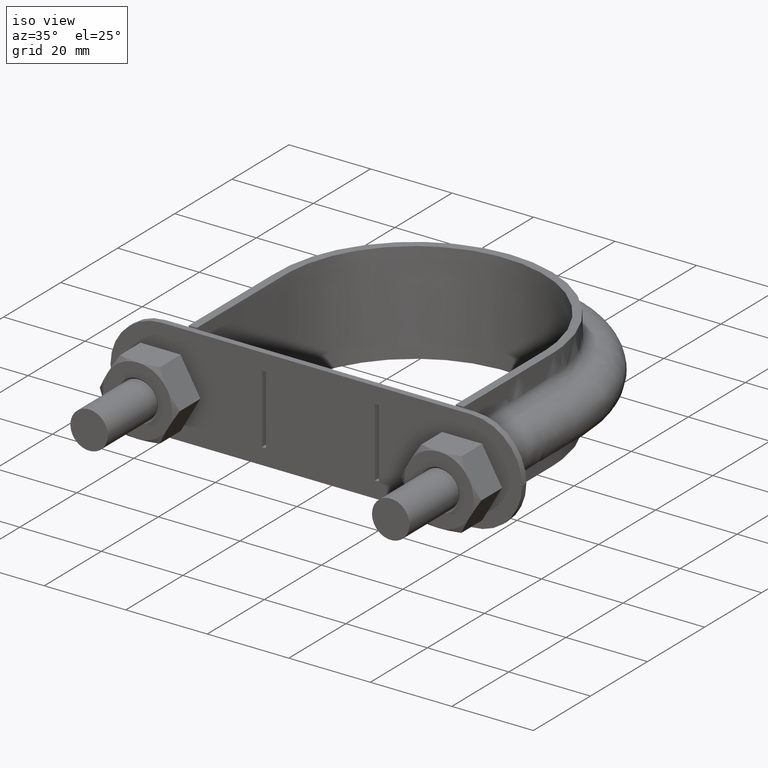
[diagram: clean part render]
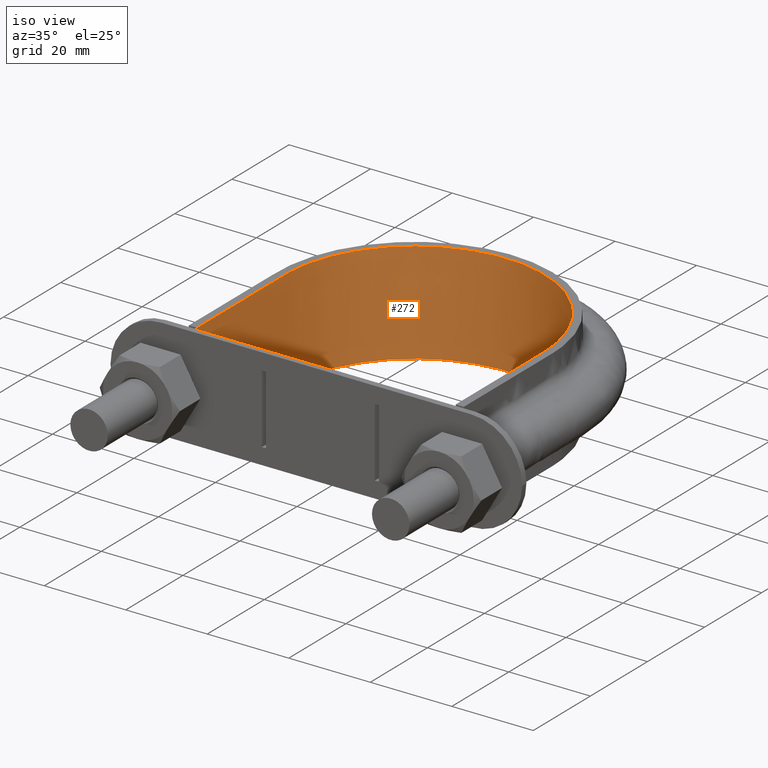
[diagram: same view with one face highlighted and labeled with its STEP entity id]
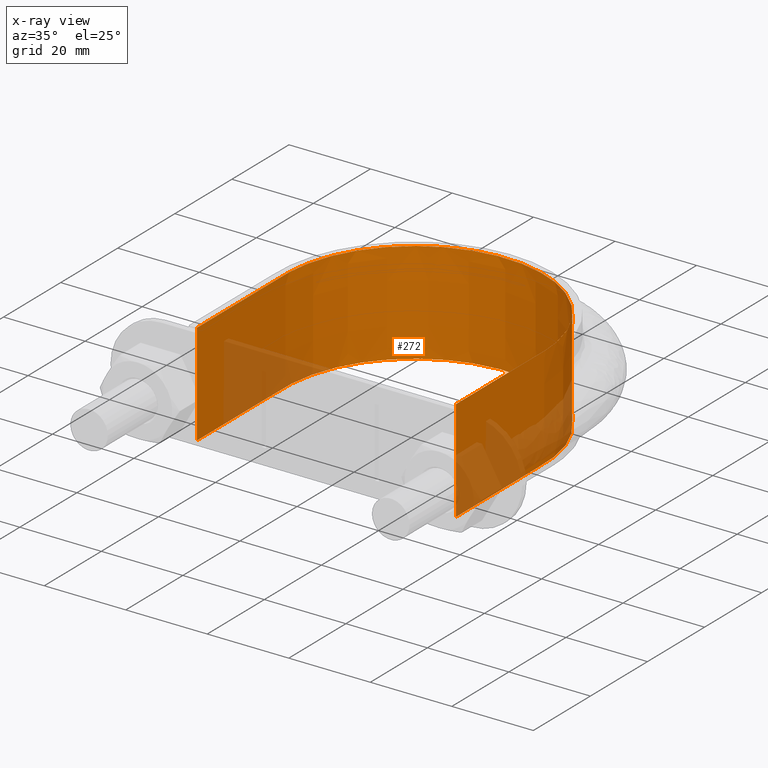
[diagram: x-ray of the same camera — body ghosted, the highlighted face saturated]
A machine part, iso view. The second image highlights one B-rep face of the part: STEP entity #272.
The next image is the same camera in x-ray: the body ghosted, the highlighted face saturated — about 20% of this face is hidden behind the body in this view.
In plain terms, the highlighted face is a SurfaceOfExtrusion surface.
Its self-contained STEP definition (entity closure, byte-faithful):
#272 = ADVANCED_FACE( '', ( #390 ), #391, .T. );
#390 = FACE_OUTER_BOUND( '', #1168, .T. );
#391 = SURFACE_OF_LINEAR_EXTRUSION( '', #1169, #1170 );
#1168 = EDGE_LOOP( '', ( #1592, #1593, #1594, #1595 ) );
#1169 = B_SPLINE_CURVE_WITH_KNOTS( '', 3, ( #1596, #1597, #1598, #1599, #1600, #1601, #1602, #1603, #1604, #1605, #1606, #1607, #1608, #1609, #1610, #1611, #1612 ), .UNSPECIFIED., .F., .F., ( 4, 3, 1, 1, 1, 1, 1, 1, 1, 3, 4 ), ( -7.93504531722054, -7.00000000000000, -6.50000000000000, -6.00000000000000, -5.00000000000000, -4.00000000000000, -3.00000000000000, -2.00000000000000, -1.50000000000000, -1.00000000000000, -0.0649546827794584 ), .UNSPECIFIED. );
#1170 = VECTOR( '', #1613, 1000.00000000000 );
#1592 = ORIENTED_EDGE( '', *, *, #2391, .T. );
#1593 = ORIENTED_EDGE( '', *, *, #2382, .F. );
#1594 = ORIENTED_EDGE( '', *, *, #2392, .F. );
#1595 = ORIENTED_EDGE( '', *, *, #2385, .T. );
#1596 = CARTESIAN_POINT( '', ( 31.7500000000000, 30.3000000000001, 12.5000100000910 ) );
#1597 = CARTESIAN_POINT( '', ( 31.7500000000000, 40.6166666666667, 12.5000100000910 ) );
#1598 = CARTESIAN_POINT( '', ( 31.7500000000000, 50.9333333333334, 12.5000100000910 ) );
#1599 = CARTESIAN_POINT( '', ( 31.7500000000000, 61.2500000000000, 12.5000100000910 ) );
#1600 = CARTESIAN_POINT( '', ( 31.7500000000000, 64.0085550717052, 12.5000100000910 ) );
#1601 = CARTESIAN_POINT( '', ( 31.0059900824327, 69.5629876399669, 12.5000100000910 ) );
#1602 = CARTESIAN_POINT( '', ( 26.7553231191718, 79.8919426147231, 12.5000100000910 ) );
#1603 = CARTESIAN_POINT( '', ( 16.6167400676300, 90.0325782676569, 12.5000100000910 ) );
#1604 = CARTESIAN_POINT( '', ( 1.85094291698502E-014, 94.4837108661715, 12.5000100000910 ) );
#1605 = CARTESIAN_POINT( '', ( -16.6167400676300, 90.0325782676569, 12.5000100000910 ) );
#1606 = CARTESIAN_POINT( '', ( -26.7553231191717, 79.8919426147231, 12.5000100000910 ) );
#1607 = CARTESIAN_POINT( '', ( -31.0059900824327, 69.5629876399669, 12.5000100000910 ) );
#1608 = CARTESIAN_POINT( '', ( -31.7500000000000, 64.0085550717052, 12.5000100000910 ) );
#1609 = CARTESIAN_POINT( '', ( -31.7500000000000, 61.2500000000000, 12.5000100000910 ) );
#1610 = CARTESIAN_POINT( '', ( -31.7500000000000, 50.9333333333334, 12.5000100000910 ) );
#1611 = CARTESIAN_POINT( '', ( -31.7500000000000, 40.6166666666667, 12.5000100000910 ) );
#1612 = CARTESIAN_POINT( '', ( -31.7500000000000, 30.3000000000001, 12.5000100000910 ) );
#1613 = DIRECTION( '', ( 0.000000000000000, 0.000000000000000, -1.00000000000000 ) );
#2382 = EDGE_CURVE( '', #2619, #2622, #2623, .T. );
#2385 = EDGE_CURVE( '', #2627, #2628, #2629, .T. );
#2391 = EDGE_CURVE( '', #2628, #2622, #2637, .F. );
#2392 = EDGE_CURVE( '', #2627, #2619, #2638, .T. );
#2619 = VERTEX_POINT( '', #3013 );
#2622 = VERTEX_POINT( '', #3017 );
#2623 = LINE( '', #3018, #3019 );
#2627 = VERTEX_POINT( '', #3054 );
#2628 = VERTEX_POINT( '', #3055 );
#2629 = LINE( '', #3056, #3057 );
#2637 = B_SPLINE_CURVE_WITH_KNOTS( '', 3, ( #3129, #3130, #3131, #3132, #3133, #3134, #3135, #3136, #3137, #3138, #3139, #3140, #3141, #3142, #3143, #3144, #3145 ), .UNSPECIFIED., .F., .F., ( 4, 3, 1, 1, 1, 1, 1, 1, 1, 3, 4 ), ( -7.93504531722054, -7.00000000000000, -6.50000000000000, -6.00000000000000, -5.00000000000000, -4.00000000000000, -3.00000000000000, -2.00000000000000, -1.50000000000000, -1.00000000000000, -0.0649546827794584 ), .UNSPECIFIED. );
#2638 = B_SPLINE_CURVE_WITH_KNOTS( '', 3, ( #3146, #3147, #3148, #3149, #3150, #3151, #3152, #3153, #3154, #3155, #3156, #3157, #3158, #3159, #3160, #3161, #3162, #3163, #3164, #3165, #3166, #3167, #3168, #3169, #3170, #3171, #3172, #3173, #3174, #3175, #3176, #3177, #3178, #3179, #3180, #3181, #3182, #3183, #3184, #3185, #3186, #3187, #3188, #3189, #3190, #3191, #3192, #3193, #3194, #3195, #3196, #3197, #3198, #3199, #3200, #3201, #3202, #3203, #3204, #3205, #3206, #3207, #3208, #3209, #3210, #3211, #3212, #3213, #3214, #3215, #3216, #3217, #3218, #3219 ), .UNSPECIFIED., .F., .F., ( 4, 1, 2, 2, 2, 2, 2, 2, 2, 2, 2, 2, 2, 2, 2, 2, 2, 2, 2, 2, 2, 2, 2, 2, 2, 2, 2, 2, 2, 2, 2, 2, 2, 2, 2, 2, 1, 4 ), ( 0.000000000000000, 0.0202102050147192, 0.0303153075220788, 0.0315784453354988, 0.0328415831489187, 0.0353678587757587, 0.0404204100294386, 0.0454729612831185, 0.0479992369099585, 0.0505255125367984, 0.0555780637904783, 0.0581043394173183, 0.0606306150441582, 0.0656831662978381, 0.0682094419246781, 0.0707357175515180, 0.0757882688051979, 0.0770514066186179, 0.0783145444320379, 0.0808408200588778, 0.0858933713125577, 0.0884196469393976, 0.0909459225662376, 0.0959984738199175, 0.0985247494467574, 0.101051025073597, 0.106103576327277, 0.108629851954117, 0.111156127580957, 0.116208678834637, 0.118734954461477, 0.121261230088317, 0.126313781341997, 0.128840056968836, 0.130103194782256, 0.131366332595676, 0.141471435103036, 0.161681640117755 ), .UNSPECIFIED. );
#3013 = CARTESIAN_POINT( '', ( 31.7500000000000, 30.3000000000001, 12.5000000000000 ) );
#3017 = CARTESIAN_POINT( '', ( 31.7500000000000, 30.3000000000001, -12.5000000000000 ) );
#3018 = CARTESIAN_POINT( '', ( 31.7500000000000, 30.3000000000001, 12.5000100000910 ) );
#3019 = VECTOR( '', #3881, 1000.00000000000 );
#3054 = CARTESIAN_POINT( '', ( -31.7500000000000, 30.3000000000001, 12.5000000000000 ) );
#3055 = CARTESIAN_POINT( '', ( -31.7500000000000, 30.3000000000001, -12.5000000000000 ) );
#3056 = CARTESIAN_POINT( '', ( -31.7500000000000, 30.3000000000001, 12.5000100000910 ) );
#3057 = VECTOR( '', #3883, 1000.00000000000 );
#3129 = CARTESIAN_POINT( '', ( 31.7500000000000, 30.3000000000001, -12.5000000000000 ) );
#3130 = CARTESIAN_POINT( '', ( 31.7500000000000, 40.6166666666667, -12.5000000000000 ) );
#3131 = CARTESIAN_POINT( '', ( 31.7500000000000, 50.9333333333334, -12.5000000000000 ) );
#3132 = CARTESIAN_POINT( '', ( 31.7500000000000, 61.2500000000000, -12.5000000000000 ) );
#3133 = CARTESIAN_POINT( '', ( 31.7500000000000, 64.0085550717052, -12.5000000000000 ) );
#3134 = CARTESIAN_POINT( '', ( 31.0059900824327, 69.5629876399669, -12.5000000000000 ) );
#3135 = CARTESIAN_POINT( '', ( 26.7553231191718, 79.8919426147231, -12.5000000000000 ) );
#3136 = CARTESIAN_POINT( '', ( 16.6167400676300, 90.0325782676569, -12.5000000000000 ) );
#3137 = CARTESIAN_POINT( '', ( 1.85094291698502E-014, 94.4837108661715, -12.5000000000000 ) );
#3138 = CARTESIAN_POINT( '', ( -16.6167400676300, 90.0325782676569, -12.5000000000000 ) );
#3139 = CARTESIAN_POINT( '', ( -26.7553231191717, 79.8919426147231, -12.5000000000000 ) );
#3140 = CARTESIAN_POINT( '', ( -31.0059900824327, 69.5629876399669, -12.5000000000000 ) );
#3141 = CARTESIAN_POINT( '', ( -31.7500000000000, 64.0085550717052, -12.5000000000000 ) );
#3142 = CARTESIAN_POINT( '', ( -31.7500000000000, 61.2500000000000, -12.5000000000000 ) );
#3143 = CARTESIAN_POINT( '', ( -31.7500000000000, 50.9333333333334, -12.5000000000000 ) );
#3144 = CARTESIAN_POINT( '', ( -31.7500000000000, 40.6166666666667, -12.5000000000000 ) );
#3145 = CARTESIAN_POINT( '', ( -31.7500000000000, 30.3000000000001, -12.5000000000000 ) );
#3146 = CARTESIAN_POINT( '', ( -31.7500000000000, 30.3000000000001, 12.5000000000000 ) );
#3147 = CARTESIAN_POINT( '', ( -31.7500000000000, 37.0369293437400, 12.5000000000000 ) );
#3148 = CARTESIAN_POINT( '', ( -31.7500000000000, 47.1423233593499, 12.5000000000000 ) );
#3149 = CARTESIAN_POINT( '', ( -31.7500000000000, 57.2477173749597, 12.5000000000000 ) );
#3150 = CARTESIAN_POINT( '', ( -31.7500000000000, 61.0372401308134, 12.5000000000000 ) );
#3151 = CARTESIAN_POINT( '', ( -31.7521642610726, 61.4583146540791, 12.5000000000000 ) );
#3152 = CARTESIAN_POINT( '', ( -31.7349635021835, 62.3003001686208, 12.5000000000000 ) );
#3153 = CARTESIAN_POINT( '', ( -31.7177711555355, 62.7212276630763, 12.5000000000000 ) );
#3154 = CARTESIAN_POINT( '', ( -31.6406833640713, 63.9838163720228, 12.5000000000000 ) );
#3155 = CARTESIAN_POINT( '', ( -31.5550232902434, 64.8274339363284, 12.5000000000000 ) );
#3156 = CARTESIAN_POINT( '', ( -31.1980880763544, 67.3428987424394, 12.5000000000000 ) );
#3157 = CARTESIAN_POINT( '', ( -30.8313275633497, 68.9804744919355, 12.5000000000000 ) );
#3158 = CARTESIAN_POINT( '', ( -29.8499384171190, 72.1798036430382, 12.5000000000000 ) );
#3159 = CARTESIAN_POINT( '', ( -29.2352287768351, 73.7415322647526, 12.5000000000000 ) );
#3160 = CARTESIAN_POINT( '', ( -28.1157425086705, 76.0237342726101, 12.5000000000000 ) );
#3161 = CARTESIAN_POINT( '', ( -27.7123205707261, 76.7680218311263, 12.5000000000000 ) );
#3162 = CARTESIAN_POINT( '', ( -26.8521555868079, 78.2119237729383, 12.5000000000000 ) );
#3163 = CARTESIAN_POINT( '', ( -26.3945912524832, 78.9136016853295, 12.5000000000000 ) );
#3164 = CARTESIAN_POINT( '', ( -24.9420027889357, 80.9596974035108, 12.5000000000000 ) );
#3165 = CARTESIAN_POINT( '', ( -23.8677478557203, 82.2456675002957, 12.5000000000000 ) );
#3166 = CARTESIAN_POINT( '', ( -22.0955390107112, 84.0559827125813, 12.5000000000000 ) );
#3167 = CARTESIAN_POINT( '', ( -21.4770182503660, 84.6397587054350, 12.5000000000000 ) );
#3168 = CARTESIAN_POINT( '', ( -20.2074882028423, 85.7467004795227, 12.5000000000000 ) );
#3169 = CARTESIAN_POINT( '', ( -19.5539268780711, 86.2726373652236, 12.5000000000000 ) );
#3170 = CARTESIAN_POINT( '', ( -17.5373630401925, 87.7685916912498, 12.5000000000000 ) );
#3171 = CARTESIAN_POINT( '', ( -16.1185968098039, 88.6569229388640, 12.5000000000000 ) );
#3172 = CARTESIAN_POINT( '', ( -13.8742414518406, 89.8191939504558, 12.5000000000000 ) );
#3173 = CARTESIAN_POINT( '', ( -13.1033698661120, 90.1797202621990, 12.5000000000000 ) );
#3174 = CARTESIAN_POINT( '', ( -11.5461475993490, 90.8335191815791, 12.5000000000000 ) );
#3175 = CARTESIAN_POINT( '', ( -10.7587533674359, 91.1277102452288, 12.5000000000000 ) );
#3176 = CARTESIAN_POINT( '', ( -8.37103214347965, 91.9151775584292, 12.5000000000000 ) );
#3177 = CARTESIAN_POINT( '', ( -6.74537802808666, 92.3141352052563, 12.5000000000000 ) );
#3178 = CARTESIAN_POINT( '', ( -4.67041394773793, 92.6530852660913, 12.5000000000000 ) );
#3179 = CARTESIAN_POINT( '', ( -4.25325934051796, 92.7128247342682, 12.5000000000000 ) );
#3180 = CARTESIAN_POINT( '', ( -3.41454124584454, 92.8158849318079, 12.5000000000000 ) );
#3181 = CARTESIAN_POINT( '', ( -2.99200723809563, 92.8592728186543, 12.5000000000000 ) );
#3182 = CARTESIAN_POINT( '', ( -1.72635552123868, 92.9635144624016, 12.5000000000000 ) );
#3183 = CARTESIAN_POINT( '', ( -0.885198156832394, 92.9987046793124, 12.5000000000000 ) );
#3184 = CARTESIAN_POINT( '', ( 1.63052804050728, 93.0024855317949, 12.5000000000000 ) );
#3185 = CARTESIAN_POINT( '', ( 3.29740714852781, 92.8700245188961, 12.5000000000000 ) );
#3186 = CARTESIAN_POINT( '', ( 5.78275763505211, 92.4746343104953, 12.5000000000000 ) );
#3187 = CARTESIAN_POINT( '', ( 6.60869771038810, 92.3098522054781, 12.5000000000000 ) );
#3188 = CARTESIAN_POINT( '', ( 8.25543979056339, 91.9127679606531, 12.5000000000000 ) );
#3189 = CARTESIAN_POINT( '', ( 9.06978327184293, 91.6818364294549, 12.5000000000000 ) );
#3190 = CARTESIAN_POINT( '', ( 11.4665941867318, 90.8995699170242, 12.5000000000000 ) );
#3191 = CARTESIAN_POINT( '', ( 13.0116435012360, 90.2575045793824, 12.5000000000000 ) );
#3192 = CARTESIAN_POINT( '', ( 15.2488688310604, 89.1110380027857, 12.5000000000000 ) );
#3193 = CARTESIAN_POINT( '', ( 15.9810871869032, 88.6980198482230, 12.5000000000000 ) );
#3194 = CARTESIAN_POINT( '', ( 17.4176237616976, 87.8083109232912, 12.5000000000000 ) );
#3195 = CARTESIAN_POINT( '', ( 18.1220003794339, 87.3313306213773, 12.5000000000000 ) );
#3196 = CARTESIAN_POINT( '', ( 20.1561445082391, 85.8324003953103, 12.5000000000000 ) );
#3197 = CARTESIAN_POINT( '', ( 21.4210334689788, 84.7351940281399, 12.5000000000000 ) );
#3198 = CARTESIAN_POINT( '', ( 23.1855996936676, 82.9468462048480, 12.5000000000000 ) );
#3199 = CARTESIAN_POINT( '', ( 23.7515184221973, 82.3268212802479, 12.5000000000000 ) );
#3200 = CARTESIAN_POINT( '', ( 24.8377613405119, 81.0378213440837, 12.5000000000000 ) );
#3201 = CARTESIAN_POINT( '', ( 25.3600679624071, 80.3658066148121, 12.5000000000000 ) );
#3202 = CARTESIAN_POINT( '', ( 26.8325624869534, 78.3058408621975, 12.5000000000000 ) );
#3203 = CARTESIAN_POINT( '', ( 27.6935953982135, 76.8693171489010, 12.5000000000000 ) );
#3204 = CARTESIAN_POINT( '', ( 28.8070288284511, 74.6211943446486, 12.5000000000000 ) );
#3205 = CARTESIAN_POINT( '', ( 29.1486450555321, 73.8563465304603, 12.5000000000000 ) );
#3206 = CARTESIAN_POINT( '', ( 29.7727235152820, 72.2956527199985, 12.5000000000000 ) );
#3207 = CARTESIAN_POINT( '', ( 30.0559168439981, 71.4974101905066, 12.5000000000000 ) );
#3208 = CARTESIAN_POINT( '', ( 30.8095353334065, 69.0712682612763, 12.5000000000000 ) );
#3209 = CARTESIAN_POINT( '', ( 31.1789547351960, 67.4341648408291, 12.5000000000000 ) );
#3210 = CARTESIAN_POINT( '', ( 31.5404185934874, 64.9500060977017, 12.5000000000000 ) );
#3211 = CARTESIAN_POINT( '', ( 31.6285547622308, 64.1171669401356, 12.5000000000000 ) );
#3212 = CARTESIAN_POINT( '', ( 31.7108071430198, 62.8605181381067, 12.5000000000000 ) );
#3213 = CARTESIAN_POINT( '', ( 31.7298830842712, 62.4404011287663, 12.5000000000000 ) );
#3214 = CARTESIAN_POINT( '', ( 31.7509054532004, 61.5976329061712, 12.5000000000000 ) );
#3215 = CARTESIAN_POINT( '', ( 31.7500000000000, 61.1745597750581, 12.5000000000000 ) );
#3216 = CARTESIAN_POINT( '', ( 31.7500000000000, 57.3681072000509, 12.5000000000000 ) );
#3217 = CARTESIAN_POINT( '', ( 31.7500000000001, 47.2175670000319, 12.5000000000000 ) );
#3218 = CARTESIAN_POINT( '', ( 31.7500000000000, 37.0670268000129, 12.5000000000000 ) );
#3219 = CARTESIAN_POINT( '', ( 31.7500000000000, 30.3000000000001, 12.5000000000000 ) );
#3881 = DIRECTION( '', ( 0.000000000000000, 0.000000000000000, -1.00000000000000 ) );
#3883 = DIRECTION( '', ( 0.000000000000000, 0.000000000000000, -1.00000000000000 ) );